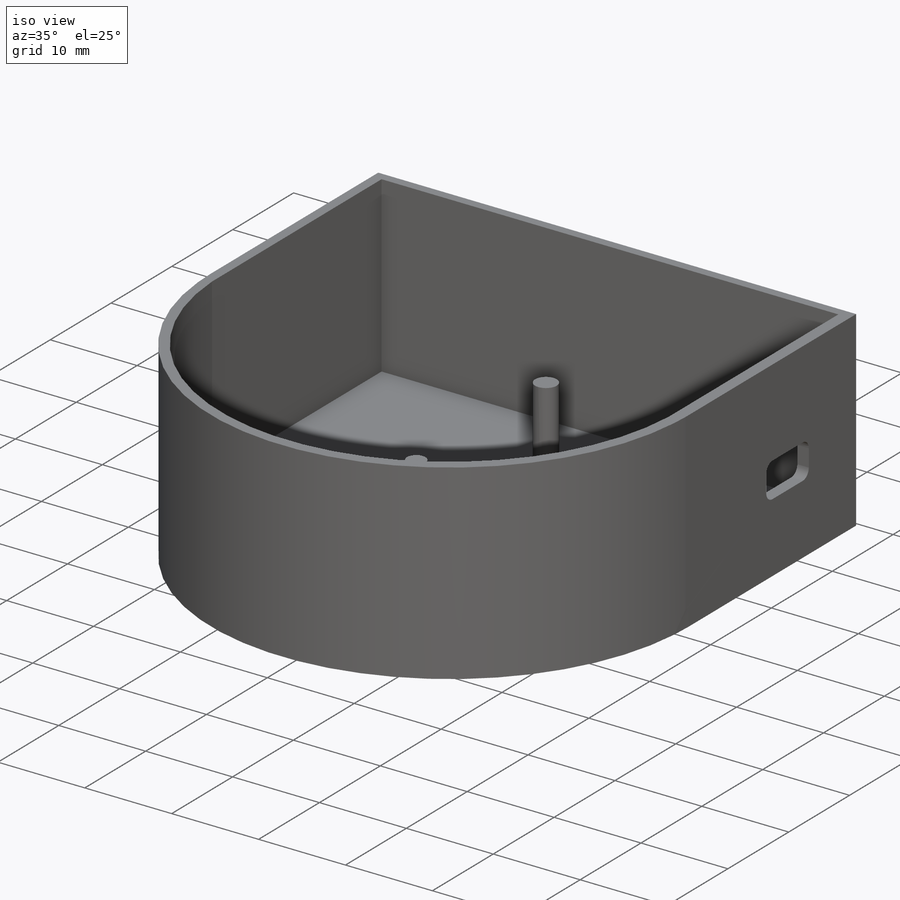
[diagram: iso view]
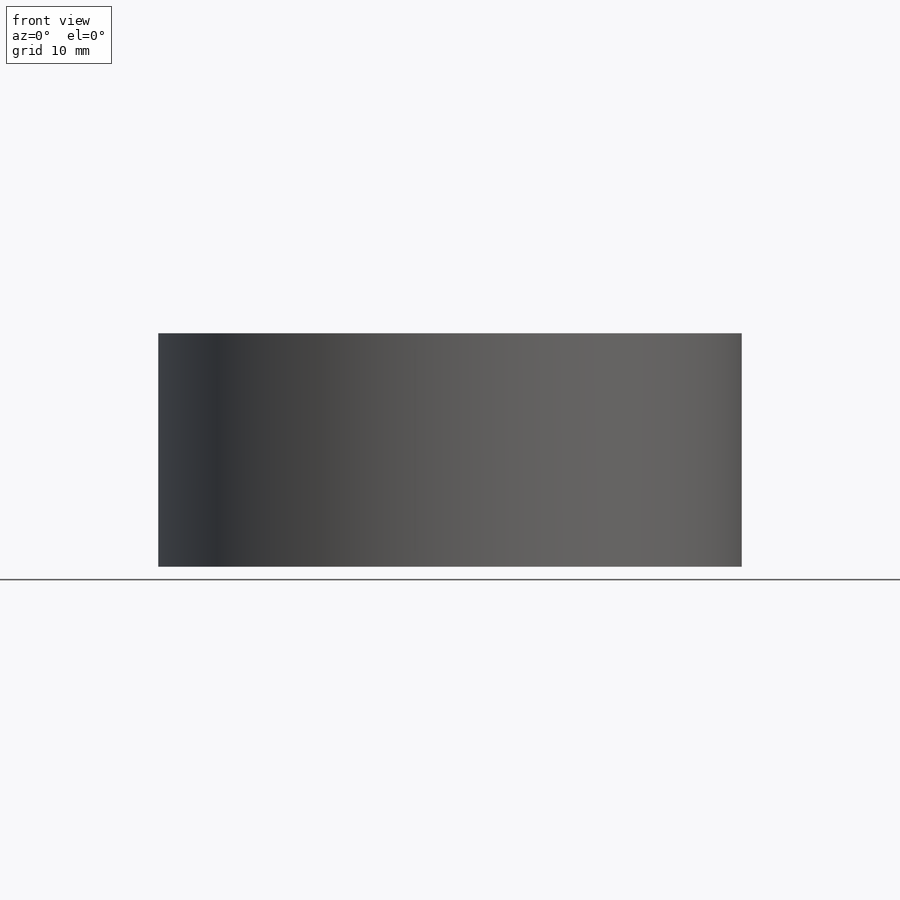
[diagram: front view]
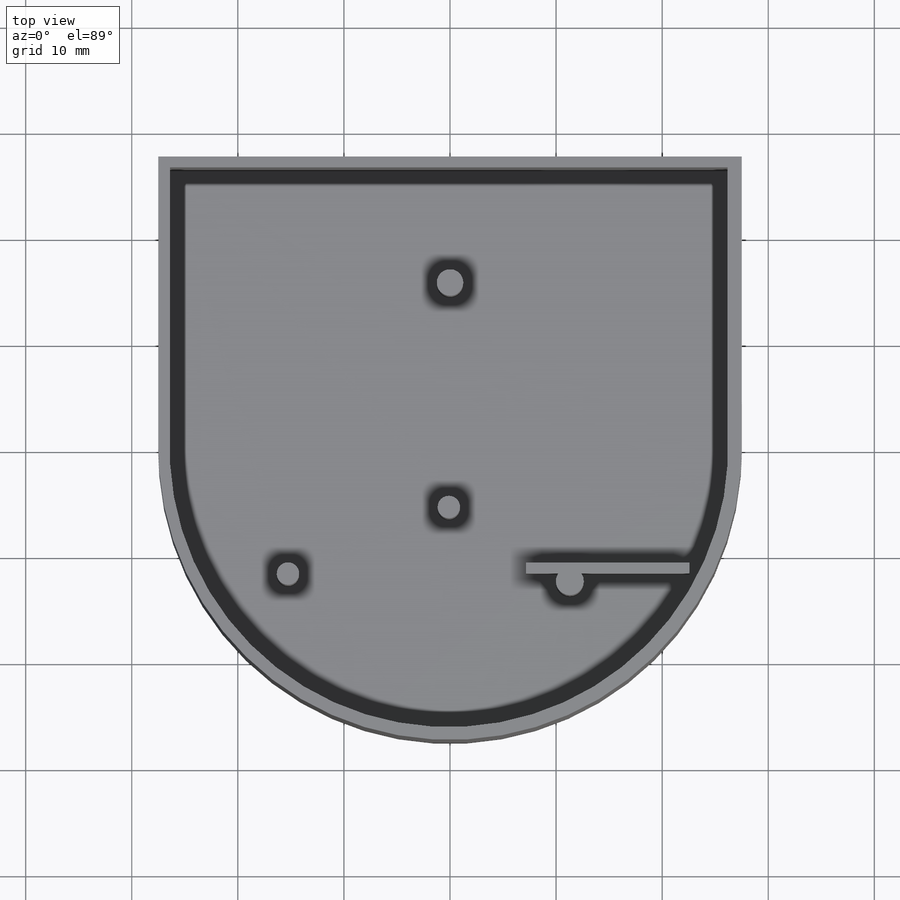
[diagram: top view]
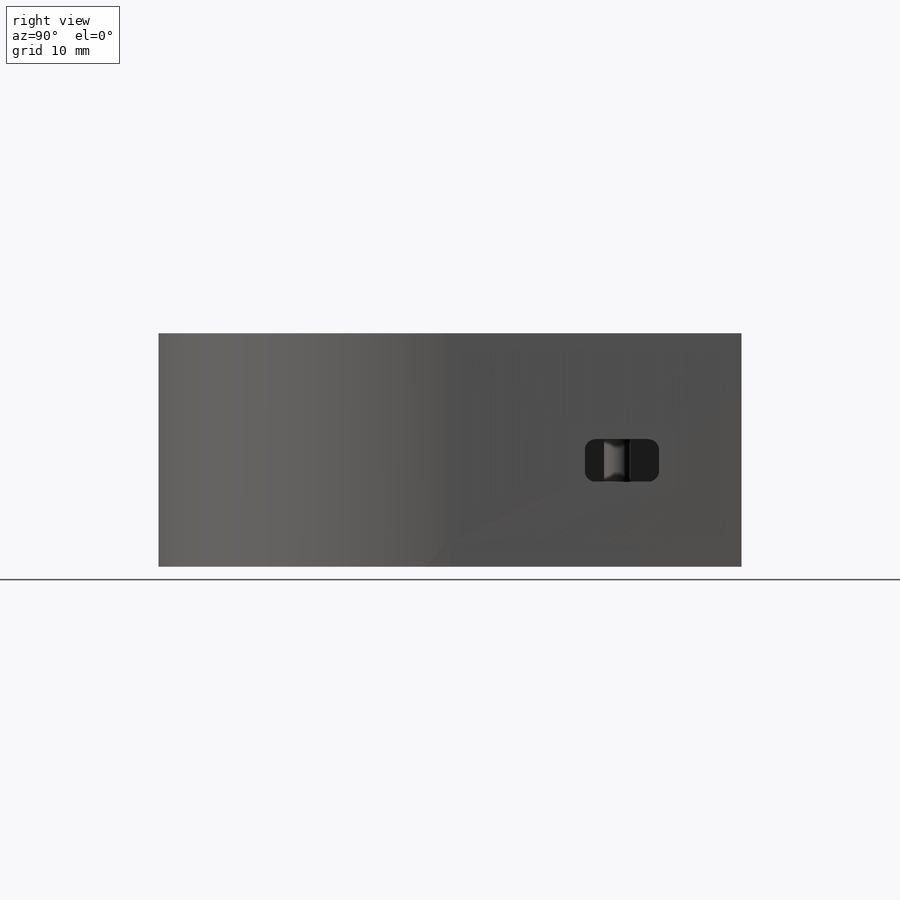
[diagram: right view]
SOLIDWORKS PART (.sldprt)
format: sldprt  version: not decoded by parser v0  size: 283,648 bytes
history: native  units: mm
features: sketch x9, extrude x7, plane x3, cut_extrude x2, fillet x2, material x1 (+9 scaffold rows collapsed)
feature tree (33):
  scaffold x9  (default folders/planes/origin — collapsed)
  material  "Material <sin especificar>"
  plane  "Alzado"
  plane  "Planta"
  plane  "Vista lateral"
  sketch  "Croquis1"  dims[c1.D1=55.0mm c1.D4=55.0mm c1.D2=~55.184066mm c1.D3=22.5mm c2.D4=27.5mm c2.D2=55.0mm c2.D3=27.5mm]
  extrude  "Saliente-Extruir1"  Depth=2mm
  sketch  "Croquis2"  dims[D1=~26.323597mm D2=~26.323597mm]
  extrude  "Saliente-Extruir2"  Depth=20mm
  sketch  "Croquis3"
  extrude  "Saliente-Extruir3"  Depth=10mm
  sketch  "Croquis4"
  extrude  "Saliente-Extruir4"  Depth=10mm
  sketch  "Croquis5"
  extrude  "Saliente-Extruir5"  Depth=10mm
  sketch  "Croquis6"
  extrude  "Saliente-Extruir6"  Depth=10mm
  sketch  "Croquis7"  dims[D1=3.5mm D2=4.0mm D3=8.5mm]
  cut_extrude  "Cortar-Extruir1"  Depth=12mm
  sketch  "Croquis8"  dims[D1=37.0mm]
  extrude  "Saliente-Extruir8"  Depth=5mm
  sketch  "Croquis10"  dims[D1=12.0mm D2=7.0mm D3=4.0mm]
  cut_extrude  "Cortar-Extruir2"  Depth=5mm
  fillet  "Redondeo1"  Radius=1mm
  fillet  "Redondeo2"  Radius=1mm
decode coverage: 16 of 20 modeling features carry decoded parameters
note: ~ marks probable driven/reference dimensions
note: suppression state not decoded; provenance and decode notes live in map.json
